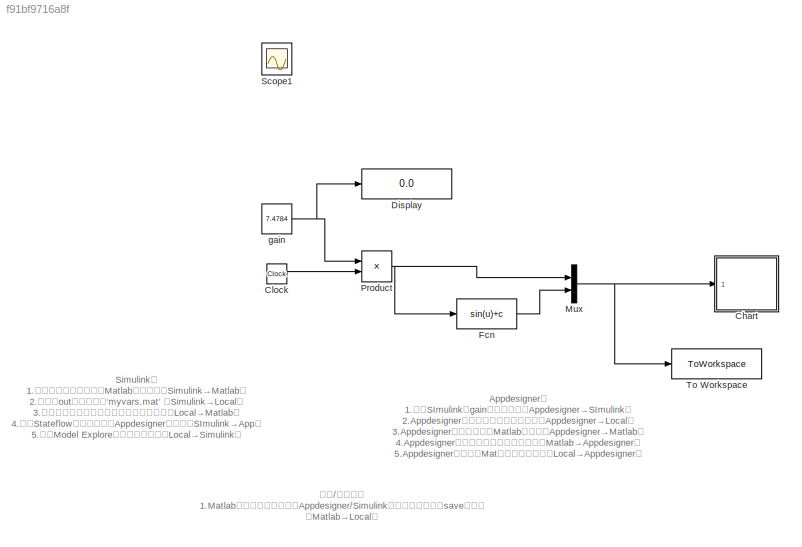
MODEL slx_f91bf9716a8f
KIND model
CONFIG AbsTol = auto
CONFIG EnableMultiTasking = off
CONFIG FixedStep = auto
CONFIG InitFcn = Workspace
CONFIG MaxStep = auto
CONFIG MinStep = auto
CONFIG RelTol = 1e-3
CONFIG SampleTimeConstraint = Unconstrained
CONFIG Solver = VariableStepAuto
CONFIG SolverName = VariableStepAuto
CONFIG StartTime = 0.0
CONFIG StopFcn = save('myvars.mat','out')\nplotmyvars
CONFIG StopTime = inf
WORKSPACE source: external: MATLAB File  (data not in archive)
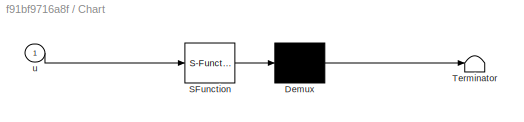
BLOCK [SubSystem] Chart
  BlockKeywords = __PRM__SERIALIZED__DATA__:Stateflow Chart,Stateflow Diagram
  ErrorFcn = Stateflow.Translate.translate
  PermitHierarchicalResolution = ExplicitOnly
  Ports = [1]
  RequestExecContextInheritance = off
  SFBlockType = Chart
  TreatAsAtomicUnit = on
BLOCK [Demux] Chart/ Demux 
  Outputs = 1
  Ports = [1, 1]
BLOCK [S-Function] Chart/ SFunction 
  EnableBusSupport = on
  FunctionName = sf_sfun
  PortCounts = [1 1]
  Ports = [1, 1]
  SFcnIsStateOwnerBlock = off
  SFunctionDeploymentMode = off
  Tag = Stateflow S-Function 2
BLOCK [Terminator] Chart/ Terminator 
BLOCK [Inport] Chart/u
  IconDisplay = Port number
BLOCK [Clock] Clock
BLOCK [Display] Display
  Decimation = 1
  Ports = [1]
BLOCK [Fcn] Fcn
  Expr = sin(u)+c
BLOCK [Mux] Mux
  DisplayOption = bar
  Inputs = 2
  Ports = [2, 1]
BLOCK [Product] Product
  InputSameDT = off
  OutDataTypeStr = Inherit: Inherit via internal rule
  Ports = [2, 1]
  RndMeth = Floor
  SaturateOnIntegerOverflow = off
BLOCK [Scope] Scope1
  Floating = off
  IOType = viewer
  NumInputPorts = 1
  Ports = []
  ScopeSpecificationString = Simulink.scopes.TimeScopeBlockCfg('CurrentConfiguration', extmgr.ConfigurationSet(extmgr.Configuration('Core','General UI',true),extmgr.Configuration('Core','Source UI',true),extmgr.Configuration('Sources','WiredSimulink',true,'DataLoggingVariableName','ScopeData1'),extmgr.Configuration('Visuals','Time Domain',true,'SerializedDisplays',{struct('MinYLimReal','-421.75089','MaxYLimReal','3885.77321',...<+1390ch>
BLOCK [ToWorkspace] To Workspace
  FixptAsFi = on
  MaxDataPoints = inf
  Ports = [1]
  SampleTime = -1
  Save2DSignal = 2-D array (concatenate along first dimension)
  VariableName = simout
BLOCK [Constant] gain
  Value = 7.4784
ANNOTATION (root): Appdesigner： 1.设置SImulink的gain模块的参数（Appdesigner→SImulink） 2.Appdesigner调用本地函数并传入参数（Appdesigner→Local） 3.Appdesigner将数据存储在Matlab工作区（Appdesigner→Matlab） 4.Appdesigner从工作区加载变量，并绘图（Matlab→Appdesigner） 5.Appdesigner加载本地Mat数据文件并绘图（Local→Appdesigner）
ANNOTATION (root): Simulink： 1.将信号作为变量传递到Matlab工作空间（Simulink→Matlab） 2.将变量out存储到本地‘myvars.mat’ （Simulink→Local） 3.调用本地函数，从本地加载数据并绘图。（Local→Matlab） 4.利用Stateflow将数据传递到Appdesigner并绘图（SImulink→App） 5.利用Model Explore从本地加载参数（Local→Simulink） 6.Matlab工作区变量是包含在SImulink作用域中的，即SImulink变量 可以随意调用Matlab工作区变量,图中sin(u)+c所示（Matlab→Simulink）
ANNOTATION (root): 同理/不言自明 1.Matlab存储变量到本地（与Appdesigner/Simulink操作相同，即调用save函数） （Matlab→Local）
LINE Clock:1 -> Product:2
LINE Fcn:1 -> Mux:2
NET Mux:1 -> Chart:1, To Workspace:1
NET Product:1 -> Fcn:1, Mux:1
NET gain:1 -> Display:1, Product:1
note: NET lines group one-source signal fan-out (src -> all destinations, sorted); 1:1 wires keep LINE
CHART Chart states=2 transitions=2
  STATE_LABEL "INIT\nen:\ncoder.extrinsic('App','plotxy')\napp=App();"
  STATE_LABEL 'Plot\ndu:\nX=u(1); %取第一列数据\nY=u(2);\nplotxy(app,X,Y);\n'
